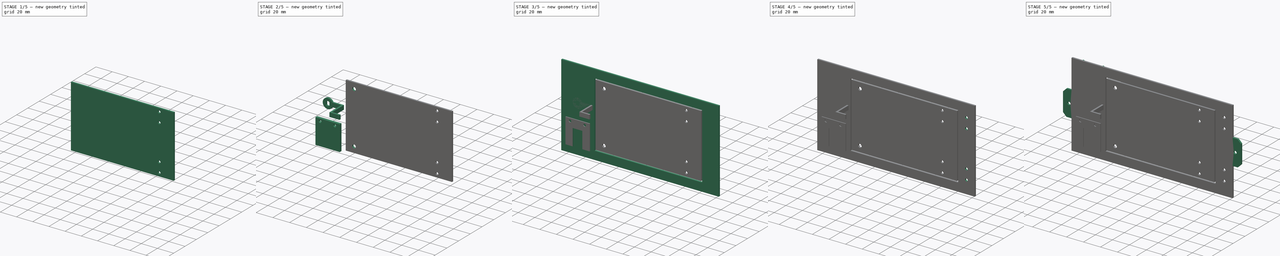
[diagram: build sequence overview — one tinted view per stage of 5, left to right]
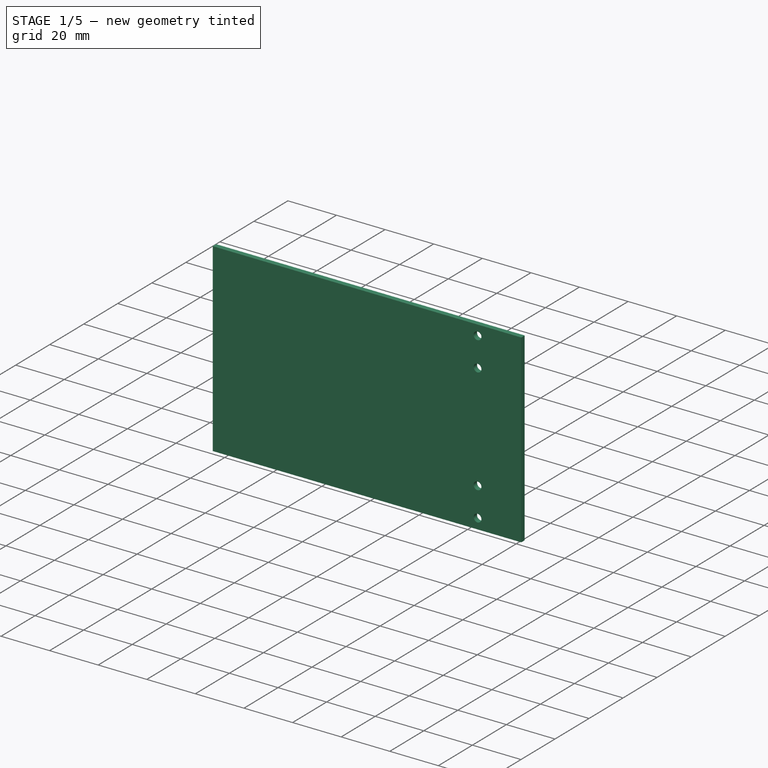
[diagram: stage 1 of 5 — iso view after this stage's code; geometry added in this stage tinted green]
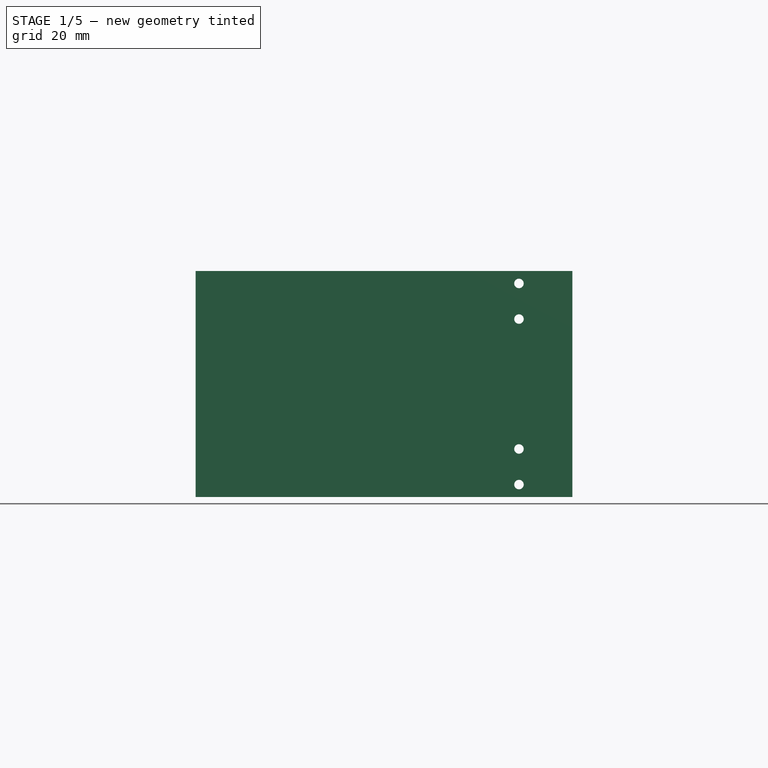
[diagram: stage 1 of 5 — front view after this stage's code; geometry added in this stage tinted green]
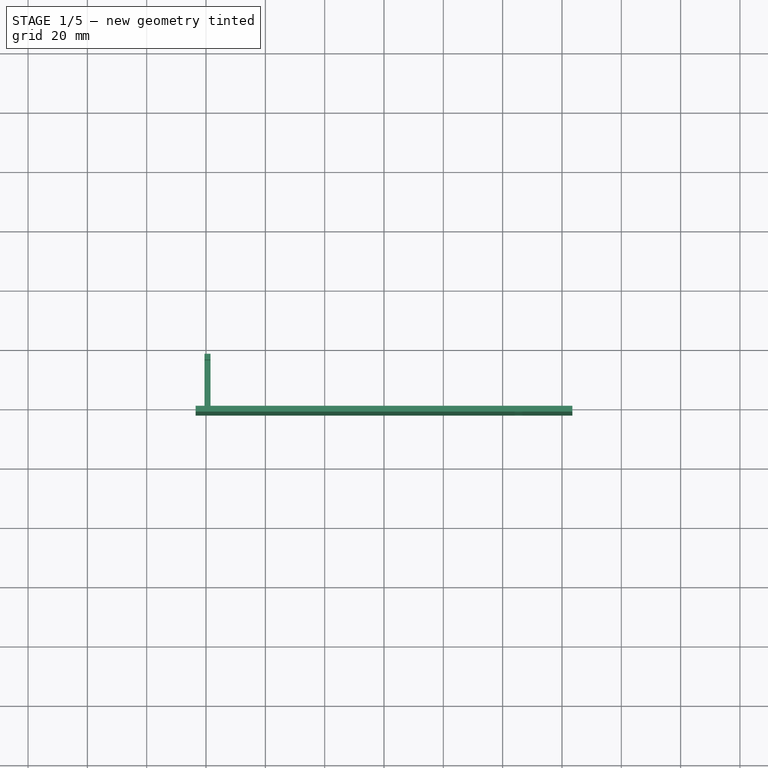
[diagram: stage 1 of 5 — top view after this stage's code; geometry added in this stage tinted green]
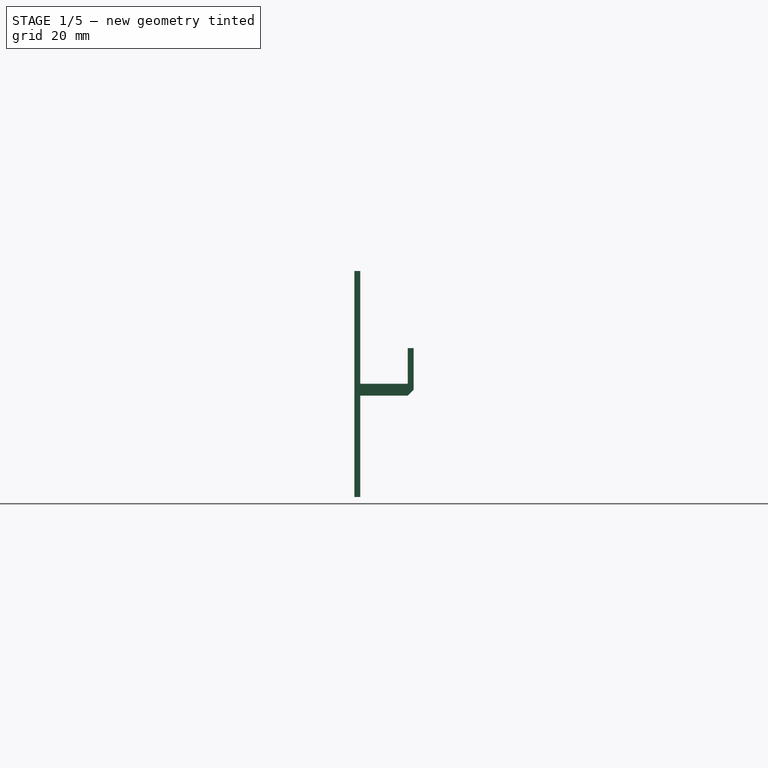
[diagram: stage 1 of 5 — right view after this stage's code; geometry added in this stage tinted green]
FCSTD DOCUMENT  (FreeCAD 1.0R39319 (Git))
Label: Box
License: All rights reserved
LicenseURL: https://en.wikipedia.org/wiki/All_rights_reserved
objects: Sketcher::SketchObject×24, PartDesign::Pad×15, PartDesign::Pocket×9, PartDesign::Body×4, PartDesign::Chamfer×2
note: 130 computed .brp shape members not serialized (recipe doc carries the construction recipe); baked Part::Feature solids carry a one-line shape summary decoded from their .brp

FEATURE [Sketcher::SketchObject] Sketch
  ArcFitTolerance = 1e-06
  AttachmentSupport = -> [XZ_Plane]
  FullyConstrained = true
  MakeInternals = false
  MapMode = 5
  Placement = pos=(0,0,0) rot=(1,0,0;1.5708rad)
  sketch-geometry (4):
    g0: LineSegment StartX=-63.5 StartY=76.2 StartZ=0 EndX=-63.5 EndY=0 EndZ=0
    g1: LineSegment StartX=-63.5 StartY=0 StartZ=0 EndX=63.5 EndY=0 EndZ=0
    g2: LineSegment StartX=63.5 StartY=0 StartZ=0 EndX=63.5 EndY=76.2 EndZ=0
    g3: LineSegment StartX=63.5 StartY=76.2 StartZ=0 EndX=-63.5 EndY=76.2 EndZ=0
  constraints (11):
    c: Coincident(g0,g1)
    c: Coincident(g1,g2)
    c: Coincident(g2,g3)
    c: Coincident(g3,g0)
    c: Vertical(g0)
    c: Vertical(g2)
    c: Horizontal(g1)
    c: Horizontal(g3)
    c: Symmetric(g1,g0,g-1)
    c: Distance(g0,g0) = 76.2
    c: Distance(g3,g3) = 127
FEATURE [PartDesign::Pad] Pad
  Direction = (0,-1,2e-16)
  Length = 2
  Length2 = 10
  Placement = pos=(0,0,0) rot=(1,0,0;1.5708rad)
  Profile = -> Sketch
  ReferenceAxis = -> Sketch [N_Axis]
  Refine = true
  Suppressed = false
  Type = 0
FEATURE [Sketcher::SketchObject] Sketch021
  ArcFitTolerance = 1e-06
  AttachmentSupport = -> [Pad]
  ExternalGeometry = -> [Pad]
  FullyConstrained = true
  MakeInternals = false
  MapMode = 5
  Placement = pos=(0,-2,0) rot=(1,0,0;1.5708rad)
  sketch-geometry (5):
    g0: Circle CenterX=45.5 CenterY=72 CenterZ=0 NormalX=0 NormalY=0 NormalZ=1 AngleXU=0 Radius=1.6
    g1: Circle CenterX=45.5 CenterY=60 CenterZ=0 NormalX=0 NormalY=0 NormalZ=1 AngleXU=0 Radius=1.6
    g2: Circle CenterX=45.5 CenterY=16.2 CenterZ=0 NormalX=0 NormalY=0 NormalZ=1 AngleXU=0 Radius=1.6
    g3: Circle CenterX=45.5 CenterY=4.2 CenterZ=0 NormalX=0 NormalY=0 NormalZ=1 AngleXU=0 Radius=1.6
    g4: LineSegment [constr] StartX=45.5 StartY=38.1 StartZ=0 EndX=63.5 EndY=38.1 EndZ=0
  constraints (14):
    c: Equal(g3,g2)
    c: Equal(g2,g1)
    c: Equal(g1,g0)
    c: Vertical(g0,g1)
    c: Vertical(g1,g2)
    c: Vertical(g2,g3)
    c: DistanceY(g3,g2) = 12
    c: DistanceY(g1,g0) = 12
    c: Diameter(g0) = 3.2
    c: Horizontal(g4)
    c: Symmetric(g-3,g-3,g4)
    c: Symmetric(g2,g1,g4)
    c: Distance(g3,g-3) = 18
    c: Distance(g3,g-1) = 4.2
FEATURE [PartDesign::Pocket] Pocket010
  BaseFeature = -> Pad
  Direction = (0,1,-2e-16)
  Length = 2
  Length2 = 5
  Placement = pos=(0,0,0) rot=(1,0,0;1.5708rad)
  Profile = -> Sketch021
  ReferenceAxis = -> Sketch021 [N_Axis]
  Refine = true
  Suppressed = false
  Type = 0
FEATURE [PartDesign::Body] Body003  label="Lock"
  AllowCompound = false
  Group = -> [Sketch024,Pad010,Sketch025,Pad011,Sketch026,Pad012]
  Origin = -> Origin003
  Placement = pos=(0,35,0) rot=(0,0,1;0rad)
  Tip = -> Pad012
FEATURE [Sketcher::SketchObject] Sketch027
  ArcFitTolerance = 1e-06
  AttachmentSupport = -> [Pocket010]
  ExternalGeometry = -> [Pocket010]
  FullyConstrained = true
  MakeInternals = false
  MapMode = 5
  Placement = pos=(0,8.5e-15,0) rot=(-1,0,0;1.5708rad)
  sketch-geometry (4):
    g0: LineSegment StartX=-60.5 StartY=-34.2 StartZ=0 EndX=-60.5 EndY=-38.2 EndZ=0
    g1: LineSegment StartX=-60.5 StartY=-38.2 StartZ=0 EndX=-58.5 EndY=-38.2 EndZ=0
    g2: LineSegment StartX=-58.5 StartY=-38.2 StartZ=0 EndX=-58.5 EndY=-34.2 EndZ=0
    g3: LineSegment StartX=-58.5 StartY=-34.2 StartZ=0 EndX=-60.5 EndY=-34.2 EndZ=0
  constraints (12):
    c: Coincident(g0,g1)
    c: Coincident(g1,g2)
    c: Coincident(g2,g3)
    c: Coincident(g3,g0)
    c: Vertical(g0)
    c: Vertical(g2)
    c: Horizontal(g1)
    c: Horizontal(g3)
    c: Distance(g0,g2) = 2
    c: Distance(g1,g3) = 4
    c: Distance(g0,g-3) = 3
    c: Distance(g0,g-4) = 38
FEATURE [PartDesign::Pad] Pad013
  BaseFeature = -> Pocket010
  Direction = (0,1,2e-16)
  Length = 18
  Length2 = 10
  Placement = pos=(0,0,0) rot=(1,0,0;1.5708rad)
  Profile = -> Sketch027
  ReferenceAxis = -> Sketch027 [N_Axis]
  Refine = true
  Suppressed = false
  Type = 0
FEATURE [Sketcher::SketchObject] Sketch028
  ArcFitTolerance = 1e-06
  AttachmentSupport = -> [Pad013]
  ExternalGeometry = -> [Pad013]
  FullyConstrained = true
  MakeInternals = false
  MapMode = 5
  Placement = pos=(0,-8.5e-15,38.2) rot=(0,0,1;3.14159rad)
  sketch-geometry (4):
    g0: LineSegment StartX=58.5 StartY=-18 StartZ=0 EndX=60.5 EndY=-18 EndZ=0
    g1: LineSegment StartX=60.5 StartY=-18 StartZ=0 EndX=60.5 EndY=-16 EndZ=0
    g2: LineSegment StartX=60.5 StartY=-16 StartZ=0 EndX=58.5 EndY=-16 EndZ=0
    g3: LineSegment StartX=58.5 StartY=-16 StartZ=0 EndX=58.5 EndY=-18 EndZ=0
  constraints (10):
    c: Coincident(g0,g1)
    c: Coincident(g1,g2)
    c: Coincident(g2,g3)
    c: Coincident(g3,g0)
    c: Horizontal(g2)
    c: Vertical(g1)
    c: Vertical(g3)
    c: Coincident(g0,g-3)
    c: Coincident(g0,g-3)
    c: Distance(g3,g3) = 2
FEATURE [PartDesign::Pad] Pad014
  BaseFeature = -> Pad013
  Direction = (0,0,1)
  Length = 12
  Length2 = 10
  Placement = pos=(0,0,0) rot=(1,0,0;1.5708rad)
  Profile = -> Sketch028
  ReferenceAxis = -> Sketch028 [N_Axis]
  Refine = true
  Suppressed = false
  Type = 0
FEATURE [PartDesign::Chamfer] Chamfer001
  Angle = 45
  Base = -> Pad014 [Edge30]
  BaseFeature = -> Pad014
  ChamferType = 0
  FlipDirection = false
  Placement = pos=(0,0,0) rot=(1,0,0;1.5708rad)
  Refine = true
  Size = 2
  Size2 = 1
  SupportTransform = false
  Suppressed = false
  UseAllEdges = false
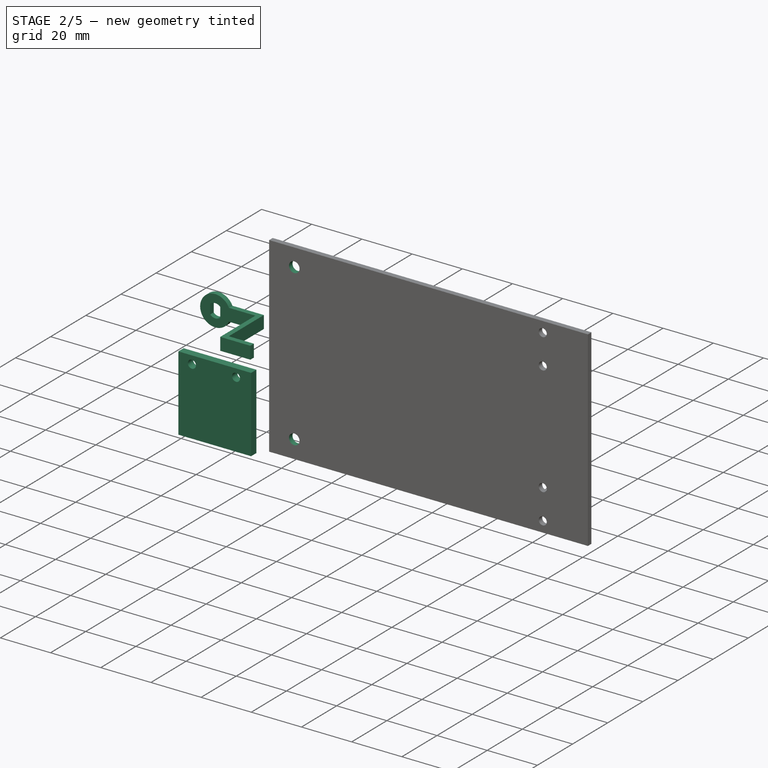
[diagram: stage 2 of 5 — iso view after this stage's code; geometry added in this stage tinted green]
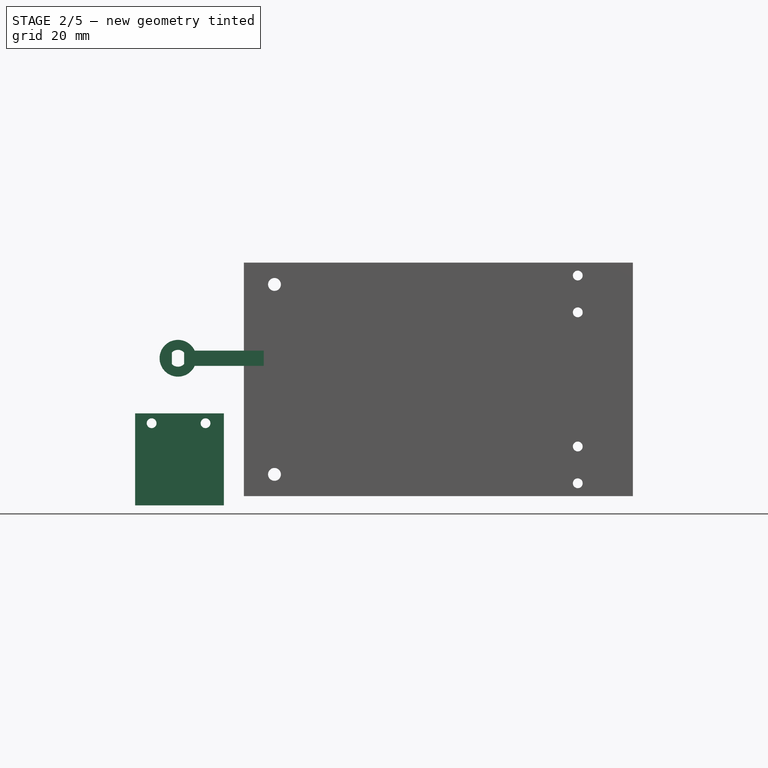
[diagram: stage 2 of 5 — front view after this stage's code; geometry added in this stage tinted green]
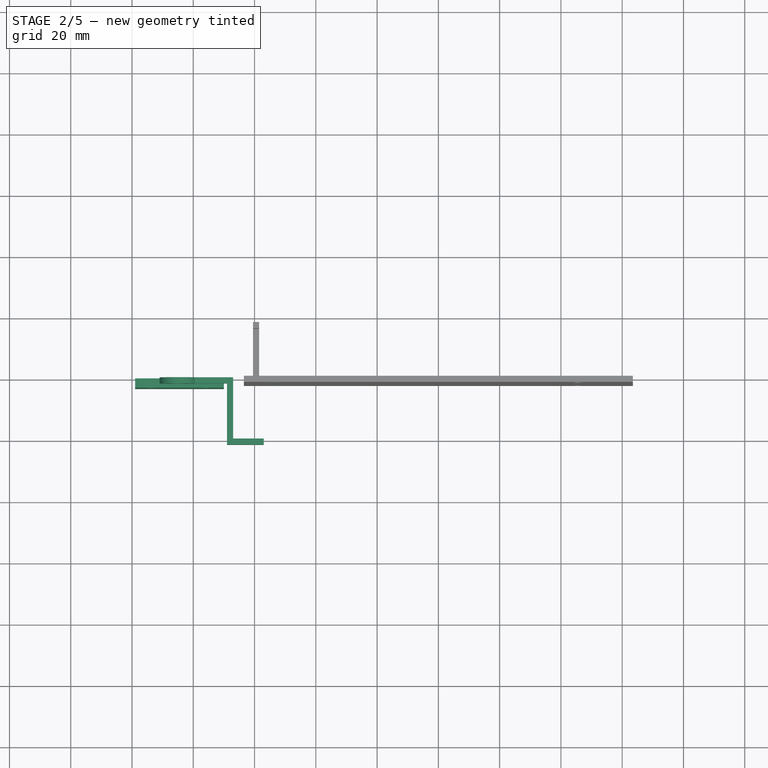
[diagram: stage 2 of 5 — top view after this stage's code; geometry added in this stage tinted green]
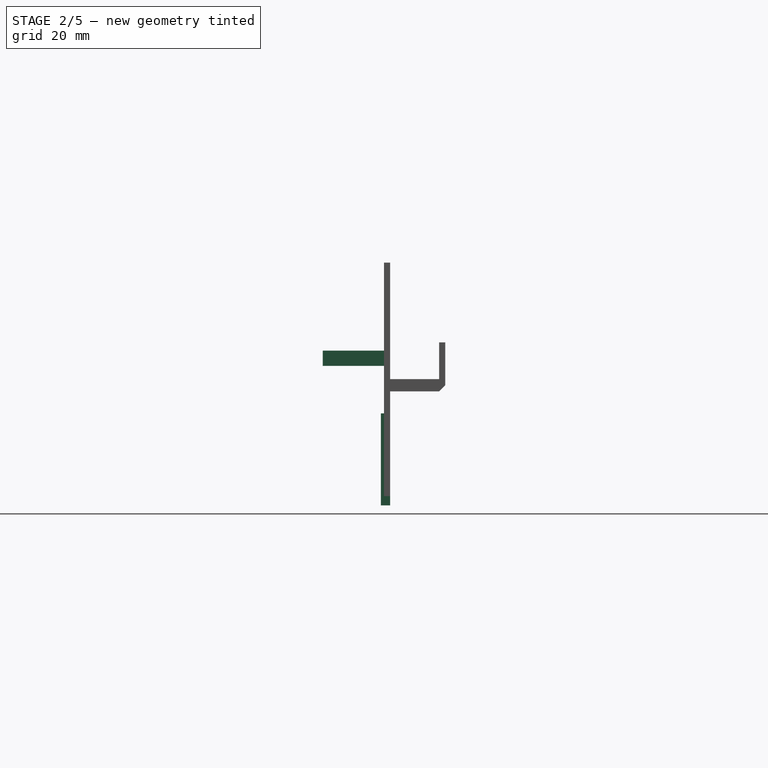
[diagram: stage 2 of 5 — right view after this stage's code; geometry added in this stage tinted green]
FEATURE [PartDesign::Body] Body001  label="Frame"
  AllowCompound = false
  Group = -> [Sketch001,Pad001,Sketch002,Pocket,Sketch003,Pad002,Sketch004,Pocket001,Sketch005,Pocket002,Sketch006,Pocket003,Sketch007,Pocket004,Sketch008,Pad003,Sketch009,Pad004,Sketch011,Pad005,Chamfer,Sketch012,Pocket005]
  Origin = -> Origin001
  Tip = -> Pocket005
FEATURE [Sketcher::SketchObject] Sketch014
  ArcFitTolerance = 1e-06
  AttachmentSupport = -> [XZ_Plane002]
  FullyConstrained = true
  MakeInternals = false
  MapMode = 5
  Placement = pos=(0,0,0) rot=(1,0,0;1.5708rad)
  sketch-geometry (6):
    g0: LineSegment StartX=-70 StartY=27 StartZ=0 EndX=-99 EndY=27 EndZ=0
    g1: LineSegment StartX=-99 StartY=27 StartZ=0 EndX=-99 EndY=-3 EndZ=0
    g2: LineSegment StartX=-99 StartY=-3 StartZ=0 EndX=-70 EndY=-3 EndZ=0
    g3: LineSegment StartX=-70 StartY=-3 StartZ=0 EndX=-70 EndY=27 EndZ=0
    g4: Circle CenterX=-76 CenterY=23.8 CenterZ=0 NormalX=0 NormalY=0 NormalZ=1 AngleXU=0 Radius=1.6
    g5: Circle CenterX=-93.6 CenterY=23.8 CenterZ=0 NormalX=0 NormalY=0 NormalZ=1 AngleXU=0 Radius=1.6
  constraints (18):
    c: Coincident(g0,g1)
    c: Coincident(g1,g2)
    c: Coincident(g2,g3)
    c: Coincident(g3,g0)
    c: Horizontal(g0)
    c: Horizontal(g2)
    c: Vertical(g1)
    c: Vertical(g3)
    c: Distance(g1,g3) = 29
    c: Distance(g0,g2) = 30
    c: Equal(g5,g4)
    c: Horizontal(g4,g5)
    c: Diameter(g5) = 3.2
    c: Distance(g-1,g2) = 3
    c: Distance(g3,g-2) = 70
    c: Distance(g4,g5) = 14.4
    c: Distance(g4,g0) = 1.6
    c: Distance(g5,g1) = 3.8
FEATURE [PartDesign::Pad] Pad006
  Direction = (0,-1,2e-16)
  Length = 3
  Length2 = 10
  Placement = pos=(0,0,0) rot=(1,0,0;1.5708rad)
  Profile = -> Sketch014
  ReferenceAxis = -> Sketch014 [N_Axis]
  Refine = true
  Suppressed = false
  Type = 0
FEATURE [PartDesign::Body] Body002  label="Motor Controller"
  AllowCompound = false
  Group = -> [Sketch014,Pad006,Sketch015,Pocket006,Sketch016,Pad007,Sketch022,Pad008,Sketch023,Pad009]
  Origin = -> Origin002
  Placement = pos=(0,35,0) rot=(0,0,1;0rad)
  Tip = -> Pad009
FEATURE [Sketcher::SketchObject] Sketch024
  ArcFitTolerance = 1e-06
  AttachmentSupport = -> [XZ_Plane003]
  FullyConstrained = true
  MakeInternals = false
  MapMode = 5
  Placement = pos=(0,0,0) rot=(1,0,0;1.5708rad)
  sketch-geometry (9):
    g0: ArcOfCircle CenterX=-85 CenterY=45 CenterZ=0 NormalX=0 NormalY=0 NormalZ=1 AngleXU=0 Radius=6 StartAngle=0.429775 EndAngle=5.85341
    g1: LineSegment StartX=-83 StartY=43.1125 StartZ=0 EndX=-83 EndY=46.8875 EndZ=0
    g2: LineSegment StartX=-87 StartY=43.1125 StartZ=0 EndX=-87 EndY=46.8875 EndZ=0
    g3: ArcOfCircle CenterX=-85 CenterY=45 CenterZ=0 NormalX=0 NormalY=0 NormalZ=1 AngleXU=0 Radius=2.75 StartAngle=0.756456 EndAngle=2.38514
    g4: ArcOfCircle CenterX=-85 CenterY=45 CenterZ=0 NormalX=0 NormalY=0 NormalZ=1 AngleXU=0 Radius=2.75 StartAngle=3.89805 EndAngle=5.52673
    g5: LineSegment StartX=-79.5456 StartY=42.5 StartZ=0 EndX=-67 EndY=42.5 EndZ=0
    g6: LineSegment StartX=-79.5456 StartY=47.5 StartZ=0 EndX=-67 EndY=47.5 EndZ=0
    g7: LineSegment StartX=-67 StartY=47.5 StartZ=0 EndX=-67 EndY=42.5 EndZ=0
    g8: GeomPoint [constr] X=-67 Y=45 Z=0
  constraints (26):
    c: Coincident(g3,g0)
    c: Coincident(g3,g2)
    c: Coincident(g4,g0)
    c: Coincident(g4,g2)
    c: Coincident(g4,g1)
    c: Equal(g3,g4)
    c: Coincident(g3,g1)
    c: Equal(g2,g1)
    c: Parallel(g1,g2)
    c: Distance(g2,g1) = 4
    c: Radius(g3) = 2.75
    c: Diameter(g0) = 12
    c: Distance(g0,g-2) = 85
    c: Distance(g0,g-1) = 45
    c: Vertical(g2)
    c: Horizontal(g5)
    c: Horizontal(g6)
    c: Coincident(g7,g6)
    c: Coincident(g7,g5)
    c: Vertical(g7)
    c: Distance(g0,g7) = 18
    c: DistanceY(g5,g6) = 5
    c: Symmetric(g7,g7,g8)
    c: Horizontal(g8,g0)
    c: Coincident(g0,g5)
    c: Coincident(g0,g6)
FEATURE [PartDesign::Pad] Pad010
  Direction = (0,-1,2e-16)
  Length = 2
  Length2 = 10
  Placement = pos=(0,0,0) rot=(1,0,0;1.5708rad)
  Profile = -> Sketch024
  ReferenceAxis = -> Sketch024 [N_Axis]
  Refine = true
  Suppressed = false
  Type = 0
FEATURE [Sketcher::SketchObject] Sketch025
  ArcFitTolerance = 1e-06
  AttachmentSupport = -> [Pad010]
  ExternalGeometry = -> [Pad010]
  FullyConstrained = true
  MakeInternals = false
  MapMode = 5
  Placement = pos=(0,-2,0) rot=(1,0,0;1.5708rad)
  sketch-geometry (4):
    g0: LineSegment StartX=-67 StartY=42.5 StartZ=0 EndX=-67 EndY=47.5 EndZ=0
    g1: LineSegment StartX=-67 StartY=47.5 StartZ=0 EndX=-69 EndY=47.5 EndZ=0
    g2: LineSegment StartX=-69 StartY=47.5 StartZ=0 EndX=-69 EndY=42.5 EndZ=0
    g3: LineSegment StartX=-69 StartY=42.5 StartZ=0 EndX=-67 EndY=42.5 EndZ=0
  constraints (10):
    c: Coincident(g0,g1)
    c: Coincident(g1,g2)
    c: Coincident(g2,g3)
    c: Coincident(g3,g0)
    c: Vertical(g2)
    c: Horizontal(g1)
    c: Horizontal(g3)
    c: Coincident(g0,g-3)
    c: Coincident(g-3,g0)
    c: DistanceX(g1,g1) = 2
FEATURE [PartDesign::Pad] Pad011
  BaseFeature = -> Pad010
  Direction = (0,-1,2e-16)
  Length = 20
  Length2 = 10
  Placement = pos=(0,0,0) rot=(1,0,0;1.5708rad)
  Profile = -> Sketch025
  ReferenceAxis = -> Sketch025 [N_Axis]
  Refine = true
  Suppressed = false
  Type = 0
FEATURE [Sketcher::SketchObject] Sketch026
  ArcFitTolerance = 1e-06
  AttachmentSupport = -> [Pad011]
  ExternalGeometry = -> [Pad011]
  FullyConstrained = true
  MakeInternals = false
  MapMode = 5
  Placement = pos=(-67,3.2e-14,0) rot=(0.707107,0,0.707107;3.14159rad)
  sketch-geometry (4):
    g0: LineSegment StartX=42.5 StartY=22 StartZ=0 EndX=42.5 EndY=20 EndZ=0
    g1: LineSegment StartX=42.5 StartY=20 StartZ=0 EndX=47.5 EndY=20 EndZ=0
    g2: LineSegment StartX=47.5 StartY=20 StartZ=0 EndX=47.5 EndY=22 EndZ=0
    g3: LineSegment StartX=47.5 StartY=22 StartZ=0 EndX=42.5 EndY=22 EndZ=0
  constraints (10):
    c: Coincident(g0,g1)
    c: Coincident(g1,g2)
    c: Coincident(g2,g3)
    c: Coincident(g3,g0)
    c: Vertical(g0)
    c: Vertical(g2)
    c: Horizontal(g1)
    c: Coincident(g0,g-3)
    c: Coincident(g-3,g2)
    c: DistanceY(g2,g2) = 2
FEATURE [PartDesign::Pad] Pad012
  BaseFeature = -> Pad011
  Direction = (1,0,-2e-16)
  Length = 10
  Length2 = 10
  Placement = pos=(0,0,0) rot=(1,0,0;1.5708rad)
  Profile = -> Sketch026
  ReferenceAxis = -> Sketch026 [N_Axis]
  Refine = true
  Suppressed = false
  Type = 0
FEATURE [Sketcher::SketchObject] Sketch029
  ArcFitTolerance = 1e-06
  AttachmentSupport = -> [Chamfer001]
  ExternalGeometry = -> [Chamfer001]
  FullyConstrained = true
  MakeInternals = false
  MapMode = 5
  Placement = pos=(0,-2,0) rot=(1,0,0;1.5708rad)
  sketch-geometry (3):
    g0: Circle CenterX=-53.5 CenterY=69.1 CenterZ=0 NormalX=0 NormalY=0 NormalZ=1 AngleXU=0 Radius=2.1
    g1: Circle CenterX=-53.5 CenterY=7.1 CenterZ=0 NormalX=0 NormalY=0 NormalZ=1 AngleXU=0 Radius=2.1
    g2: LineSegment [constr] StartX=-63.5 StartY=38.1 StartZ=0 EndX=-53.5 EndY=38.1 EndZ=0
  constraints (8):
    c: Vertical(g1,g0)
    c: Equal(g0,g1)
    c: Diameter(g0) = 4.2
    c: Distance(g0,g1) = 57.8
    c: Symmetric(g-3,g-3,g2)
    c: Horizontal(g2)
    c: Symmetric(g1,g0,g2)
    c: Distance(g2,g2) = 10
FEATURE [PartDesign::Pocket] Pocket011
  BaseFeature = -> Chamfer001
  Direction = (0,1,-2e-16)
  Length = 2
  Length2 = 5
  Placement = pos=(0,0,0) rot=(1,0,0;1.5708rad)
  Profile = -> Sketch029
  ReferenceAxis = -> Sketch029 [N_Axis]
  Refine = true
  Suppressed = false
  Type = 0
FEATURE [PartDesign::Body] Body  label="Door"
  AllowCompound = false
  Group = -> [Sketch,Pad,Sketch021,Pocket010,Sketch027,Pad013,Sketch028,Pad014,Chamfer001,Sketch029,Pocket011]
  Origin = -> Origin
  Tip = -> Pocket011
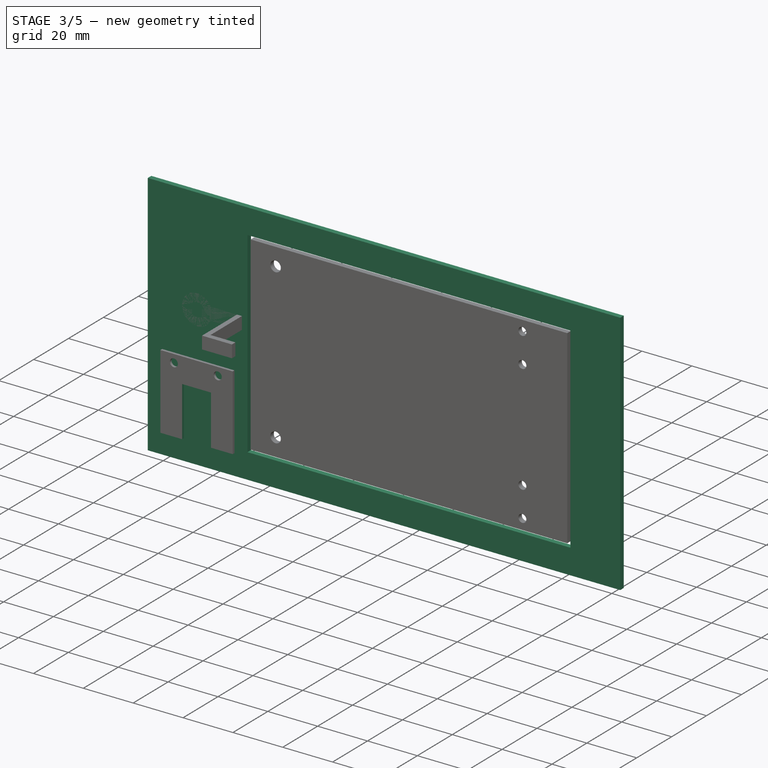
[diagram: stage 3 of 5 — iso view after this stage's code; geometry added in this stage tinted green]
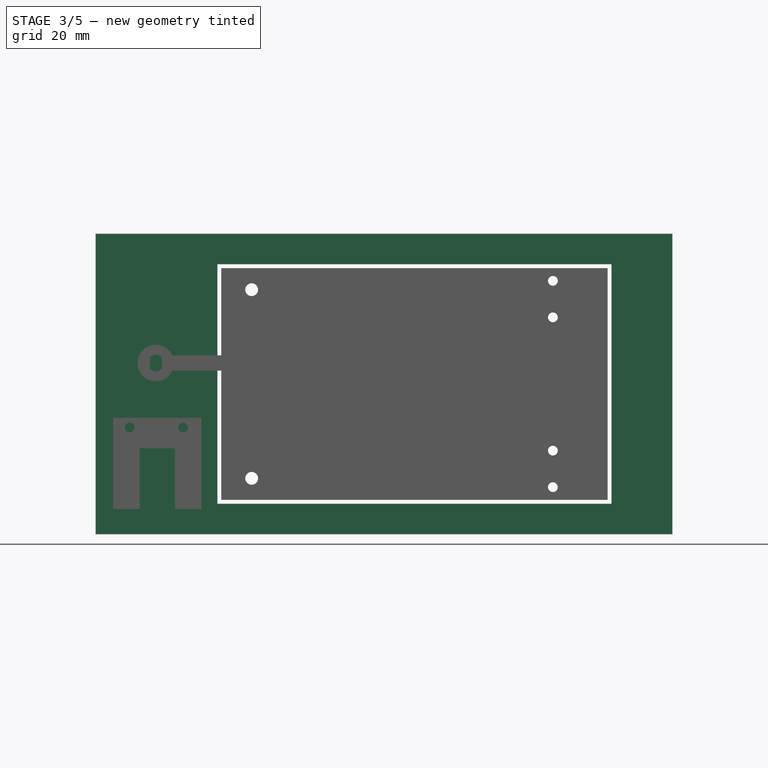
[diagram: stage 3 of 5 — front view after this stage's code; geometry added in this stage tinted green]
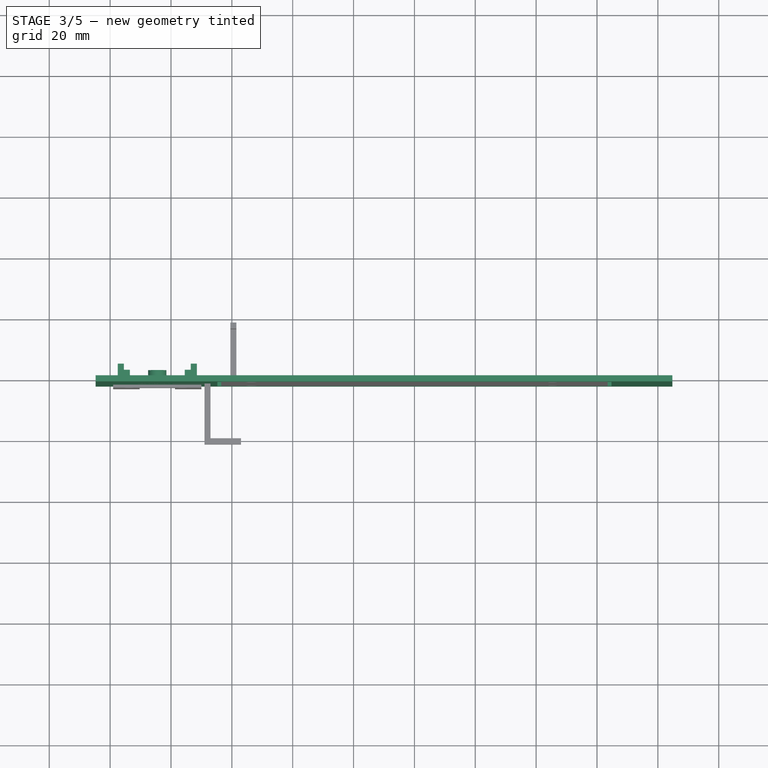
[diagram: stage 3 of 5 — top view after this stage's code; geometry added in this stage tinted green]
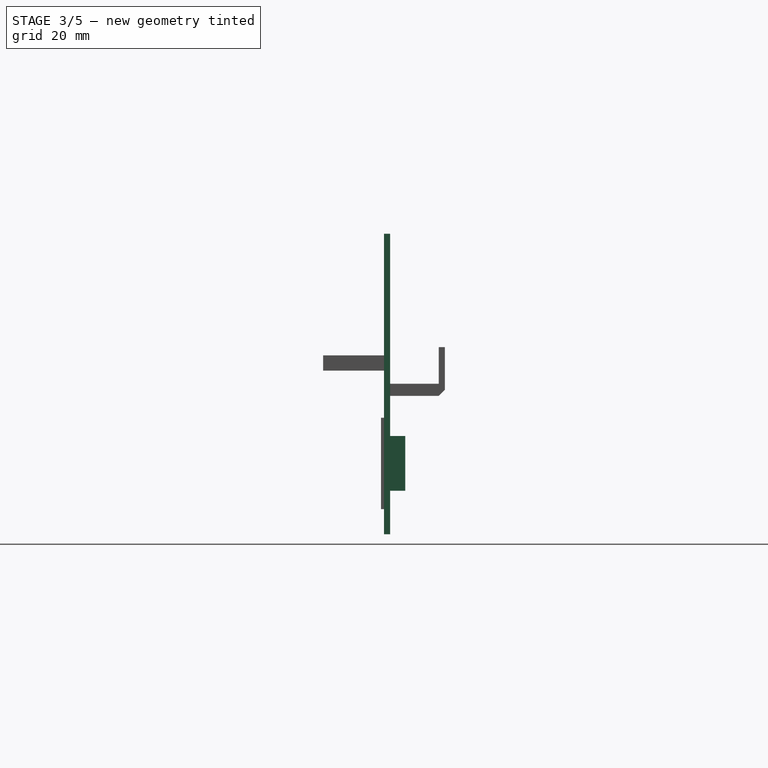
[diagram: stage 3 of 5 — right view after this stage's code; geometry added in this stage tinted green]
FEATURE [Sketcher::SketchObject] Sketch001
  ArcFitTolerance = 1e-06
  AttachmentSupport = -> [XZ_Plane001]
  FullyConstrained = true
  MakeInternals = false
  MapMode = 5
  Placement = pos=(0,0,0) rot=(1,0,0;1.5708rad)
  sketch-geometry (8):
    g0: LineSegment StartX=-64.77 StartY=77.47 StartZ=0 EndX=-64.77 EndY=-1.27 EndZ=0
    g1: LineSegment StartX=-64.77 StartY=-1.27 StartZ=0 EndX=64.77 EndY=-1.27 EndZ=0
    g2: LineSegment StartX=64.77 StartY=-1.27 StartZ=0 EndX=64.77 EndY=77.47 EndZ=0
    g3: LineSegment StartX=64.77 StartY=77.47 StartZ=0 EndX=-64.77 EndY=77.47 EndZ=0
    g4: LineSegment StartX=-104.77 StartY=87.47 StartZ=0 EndX=-104.77 EndY=-11.27 EndZ=0
    g5: LineSegment StartX=-104.77 StartY=-11.27 StartZ=0 EndX=84.77 EndY=-11.27 EndZ=0
    g6: LineSegment StartX=84.77 StartY=-11.27 StartZ=0 EndX=84.77 EndY=87.47 EndZ=0
    g7: LineSegment StartX=84.77 StartY=87.47 StartZ=0 EndX=-104.77 EndY=87.47 EndZ=0
  constraints (23):
    c: Coincident(g0,g1)
    c: Coincident(g1,g2)
    c: Coincident(g2,g3)
    c: Coincident(g3,g0)
    c: Vertical(g0)
    c: Vertical(g2)
    c: Horizontal(g3)
    c: Distance(g0,g0) = 78.74
    c: Distance(g3,g3) = 129.54
    c: Coincident(g4,g5)
    c: Coincident(g5,g6)
    c: Coincident(g6,g7)
    c: Coincident(g7,g4)
    c: Vertical(g4)
    c: Vertical(g6)
    c: Horizontal(g5)
    c: Horizontal(g7)
    c: Distance(g6,g2) = 20
    c: Distance(g7,g3) = 10
    c: Distance(g0,g4) = 40
    c: Distance(g5,g1) = 10
    c: Symmetric(g1,g0,g-2)
    c: Distance(g-1,g1) = 1.27
FEATURE [PartDesign::Pad] Pad001
  Direction = (0,-1,2e-16)
  Length = 2
  Length2 = 10
  Placement = pos=(0,0,0) rot=(1,0,0;1.5708rad)
  Profile = -> Sketch001
  ReferenceAxis = -> Sketch001 [N_Axis]
  Refine = true
  Suppressed = false
  Type = 0
FEATURE [Sketcher::SketchObject] Sketch002
  ArcFitTolerance = 1e-06
  AttachmentSupport = -> [Pad001]
  ExternalGeometry = -> [Pad001]
  FullyConstrained = true
  MakeInternals = false
  MapMode = 5
  Placement = pos=(0,8.5e-15,0) rot=(-1,0,0;1.5708rad)
  sketch-geometry (10):
    g0: LineSegment StartX=-99.17 StartY=-33.67 StartZ=0 EndX=-99.17 EndY=-85.47 EndZ=0
    g1: LineSegment StartX=-99.17 StartY=-85.47 StartZ=0 EndX=-70.37 EndY=-85.47 EndZ=0
    g2: LineSegment StartX=-70.37 StartY=-85.47 StartZ=0 EndX=-70.37 EndY=-33.67 EndZ=0
    g3: LineSegment StartX=-70.37 StartY=-33.67 StartZ=0 EndX=-79.47 EndY=-33.67 EndZ=0
    g4: LineSegment [constr] StartX=-104.77 StartY=-85.47 StartZ=0 EndX=-64.77 EndY=-85.47 EndZ=0
    g5: GeomPoint [constr] X=-84.77 Y=-85.47 Z=0
    g6: LineSegment StartX=-79.47 StartY=-33.67 StartZ=0 EndX=-79.47 EndY=-0.67 EndZ=0
    g7: LineSegment StartX=-79.47 StartY=-0.67 StartZ=0 EndX=-90.07 EndY=-0.67 EndZ=0
    g8: LineSegment StartX=-90.07 StartY=-0.67 StartZ=0 EndX=-90.07 EndY=-33.67 EndZ=0
    g9: LineSegment StartX=-90.07 StartY=-33.67 StartZ=0 EndX=-99.17 EndY=-33.67 EndZ=0
  constraints (28):
    c: Coincident(g0,g1)
    c: Coincident(g1,g2)
    c: Coincident(g2,g3)
    c: Coincident(g9,g0)
    c: Vertical(g0)
    c: Vertical(g2)
    c: Horizontal(g1)
    c: Horizontal(g3)
    c: Distance(g0,g2) = 28.8
    c: Distance(g1,g9) = 51.8
    c: PointOnObject(g4,g-3)
    c: PointOnObject(g4,g-4)
    c: Horizontal(g4)
    c: Symmetric(g4,g4,g5)
    c: Symmetric(g0,g1,g5)
    c: Distance(g-3,g1) = 2
    c: Coincident(g6,g7)
    c: Coincident(g7,g8)
    c: Horizontal(g7)
    c: Vertical(g6)
    c: Vertical(g8)
    c: Coincident(g6,g3)
    c: Coincident(g8,g9)
    c: Horizontal(g9)
    c: Equal(g9,g3)
    c: Horizontal(g3,g8)
    c: Distance(g7,g7) = 10.6
    c: DistanceY(g8,g8) = 33
FEATURE [PartDesign::Pocket] Pocket
  BaseFeature = -> Pad001
  Direction = (0,-1,-2e-16)
  Length = 1
  Length2 = 5
  Placement = pos=(0,0,0) rot=(1,0,0;1.5708rad)
  Profile = -> Sketch002
  ReferenceAxis = -> Sketch002 [N_Axis]
  Refine = true
  Suppressed = false
  Type = 0
FEATURE [Sketcher::SketchObject] Sketch015
  ArcFitTolerance = 1e-06
  AttachmentSupport = -> [Pad006]
  ExternalGeometry = -> [Pad006]
  FullyConstrained = true
  MakeInternals = false
  MapMode = 5
  Placement = pos=(0,-3,0) rot=(1,0,0;1.5708rad)
  sketch-geometry (5):
    g0: LineSegment StartX=-90.3 StartY=17 StartZ=0 EndX=-90.3 EndY=-3 EndZ=0
    g1: LineSegment StartX=-90.3 StartY=-3 StartZ=0 EndX=-78.7 EndY=-3 EndZ=0
    g2: LineSegment StartX=-78.7 StartY=-3 StartZ=0 EndX=-78.7 EndY=17 EndZ=0
    g3: LineSegment StartX=-78.7 StartY=17 StartZ=0 EndX=-90.3 EndY=17 EndZ=0
    g4: GeomPoint [constr] X=-84.5 Y=-3 Z=0
  constraints (12):
    c: Coincident(g0,g1)
    c: Coincident(g1,g2)
    c: Coincident(g2,g3)
    c: Coincident(g3,g0)
    c: Vertical(g0)
    c: Vertical(g2)
    c: Horizontal(g1)
    c: Horizontal(g3)
    c: Distance(g0,g2) = 11.6
    c: Distance(g1,g3) = 20
    c: Symmetric(g-3,g-3,g4)
    c: Symmetric(g1,g0,g4)
FEATURE [PartDesign::Pocket] Pocket006
  BaseFeature = -> Pad006
  Direction = (0,1,-2e-16)
  Length = 2.6
  Length2 = 5
  Placement = pos=(0,0,0) rot=(1,0,0;1.5708rad)
  Profile = -> Sketch015
  ReferenceAxis = -> Sketch015 [N_Axis]
  Refine = true
  Suppressed = false
  Type = 0
FEATURE [Sketcher::SketchObject] Sketch016
  ArcFitTolerance = 1e-06
  AttachmentSupport = -> [Pocket006]
  ExternalGeometry = -> [Pocket006]
  FullyConstrained = true
  MakeInternals = false
  MapMode = 5
  Placement = pos=(0,3e-15,0) rot=(-1,0,0;1.5708rad)
  sketch-geometry (2):
    g0: Circle CenterX=-84.5 CenterY=-12 CenterZ=0 NormalX=0 NormalY=0 NormalZ=1 AngleXU=0 Radius=1.4
    g1: Circle CenterX=-84.5 CenterY=-12 CenterZ=0 NormalX=0 NormalY=0 NormalZ=1 AngleXU=0 Radius=3
  constraints (4):
    c: Diameter(g0) = 2.8
    c: Symmetric(g-3,g-4,g0)
    c: Coincident(g1,g0)
    c: Distance(g0,g1) = 1.6
FEATURE [PartDesign::Pad] Pad007
  BaseFeature = -> Pocket006
  Direction = (0,1,2e-16)
  Length = 3
  Length2 = 10
  Placement = pos=(0,0,0) rot=(1,0,0;1.5708rad)
  Profile = -> Sketch016
  ReferenceAxis = -> Sketch016 [N_Axis]
  Refine = true
  Suppressed = false
  Type = 0
FEATURE [Sketcher::SketchObject] Sketch022
  ArcFitTolerance = 1e-06
  AttachmentSupport = -> [Pad007]
  ExternalGeometry = -> [Pad007]
  FullyConstrained = true
  MakeInternals = false
  MapMode = 5
  Placement = pos=(0,3e-15,0) rot=(-1,0,0;1.5708rad)
  sketch-geometry (8):
    g0: LineSegment StartX=-97.5 StartY=-3 StartZ=0 EndX=-97.5 EndY=-21 EndZ=0
    g1: LineSegment StartX=-97.5 StartY=-21 StartZ=0 EndX=-95.5 EndY=-21 EndZ=0
    g2: LineSegment StartX=-95.5 StartY=-21 StartZ=0 EndX=-95.5 EndY=-3 EndZ=0
    g3: LineSegment StartX=-95.5 StartY=-3 StartZ=0 EndX=-97.5 EndY=-3 EndZ=0
    g4: LineSegment StartX=-73.5 StartY=-3 StartZ=0 EndX=-73.5 EndY=-21 EndZ=0
    g5: LineSegment StartX=-73.5 StartY=-21 StartZ=0 EndX=-71.5 EndY=-21 EndZ=0
    g6: LineSegment StartX=-71.5 StartY=-21 StartZ=0 EndX=-71.5 EndY=-3 EndZ=0
    g7: LineSegment StartX=-71.5 StartY=-3 StartZ=0 EndX=-73.5 EndY=-3 EndZ=0
  constraints (23):
    c: Coincident(g0,g1)
    c: Coincident(g1,g2)
    c: Coincident(g2,g3)
    c: Coincident(g3,g0)
    c: Vertical(g0)
    c: Vertical(g2)
    c: Horizontal(g1)
    c: Horizontal(g3)
    c: Coincident(g4,g5)
    c: Coincident(g5,g6)
    c: Coincident(g6,g7)
    c: Coincident(g7,g4)
    c: Vertical(g4)
    c: Vertical(g6)
    c: Horizontal(g5)
    c: Horizontal(g7)
    c: Equal(g2,g4)
    c: Equal(g3,g7)
    c: Horizontal(g2,g4)
    c: Distance(g1,g1) = 2
    c: Distance(g4,g2) = 22
    c: Symmetric(g2,g4,g-3)
    c: DistanceY(g0,g0) = 18
FEATURE [PartDesign::Pad] Pad008
  BaseFeature = -> Pad007
  Direction = (0,1,2e-16)
  Length = 5
  Length2 = 10
  Placement = pos=(0,0,0) rot=(1,0,0;1.5708rad)
  Profile = -> Sketch022
  ReferenceAxis = -> Sketch022 [N_Axis]
  Refine = true
  Suppressed = false
  Type = 0
FEATURE [Sketcher::SketchObject] Sketch023
  ArcFitTolerance = 1e-06
  AttachmentSupport = -> [Pad008]
  ExternalGeometry = -> [Pad008]
  FullyConstrained = true
  MakeInternals = false
  MapMode = 5
  Placement = pos=(0,3e-15,0) rot=(-1,0,0;1.5708rad)
  sketch-geometry (8):
    g0: LineSegment StartX=-95.5 StartY=-3 StartZ=0 EndX=-95.5 EndY=-21 EndZ=0
    g1: LineSegment StartX=-95.5 StartY=-21 StartZ=0 EndX=-93.5 EndY=-21 EndZ=0
    g2: LineSegment StartX=-93.5 StartY=-21 StartZ=0 EndX=-93.5 EndY=-3 EndZ=0
    g3: LineSegment StartX=-93.5 StartY=-3 StartZ=0 EndX=-95.5 EndY=-3 EndZ=0
    g4: LineSegment StartX=-73.5 StartY=-21 StartZ=0 EndX=-73.5 EndY=-3 EndZ=0
    g5: LineSegment StartX=-73.5 StartY=-3 StartZ=0 EndX=-75.5 EndY=-3 EndZ=0
    g6: LineSegment StartX=-75.5 StartY=-3 StartZ=0 EndX=-75.5 EndY=-21 EndZ=0
    g7: LineSegment StartX=-75.5 StartY=-21 StartZ=0 EndX=-73.5 EndY=-21 EndZ=0
  constraints (20):
    c: Coincident(g0,g1)
    c: Coincident(g1,g2)
    c: Coincident(g2,g3)
    c: Coincident(g3,g0)
    c: Vertical(g2)
    c: Horizontal(g1)
    c: Horizontal(g3)
    c: Coincident(g0,g-3)
    c: Coincident(g4,g5)
    c: Coincident(g5,g6)
    c: Coincident(g6,g7)
    c: Coincident(g7,g4)
    c: Vertical(g6)
    c: Horizontal(g5)
    c: Horizontal(g7)
    c: Coincident(g4,g-4)
    c: Coincident(g4,g-4)
    c: Coincident(g0,g-3)
    c: Equal(g3,g5)
    c: Distance(g3,g3) = 2
FEATURE [PartDesign::Pad] Pad009
  BaseFeature = -> Pad008
  Direction = (0,1,2e-16)
  Length = 3
  Length2 = 10
  Placement = pos=(0,0,0) rot=(1,0,0;1.5708rad)
  Profile = -> Sketch023
  ReferenceAxis = -> Sketch023 [N_Axis]
  Refine = true
  Suppressed = false
  Type = 0
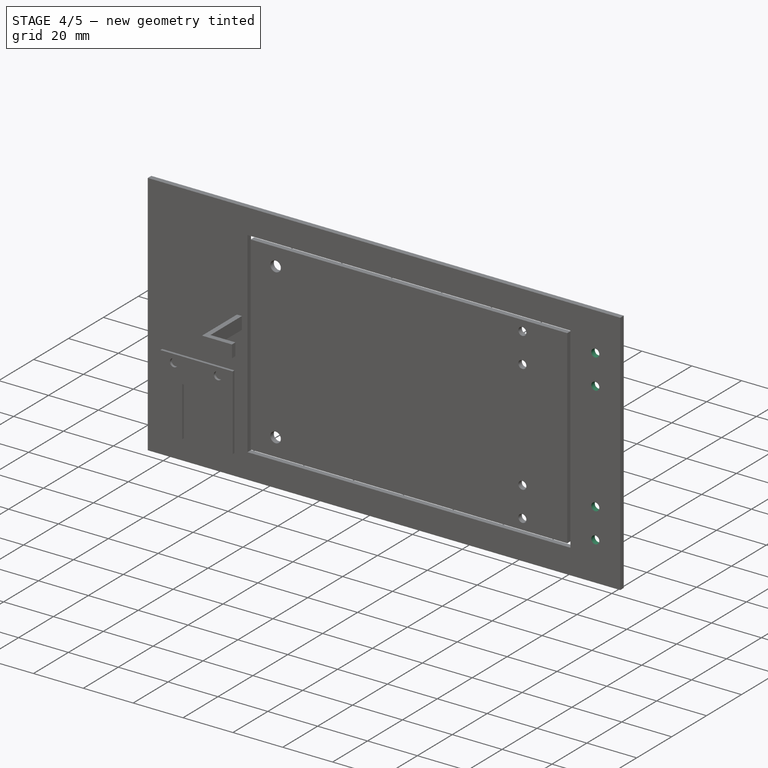
[diagram: stage 4 of 5 — iso view after this stage's code; geometry added in this stage tinted green]
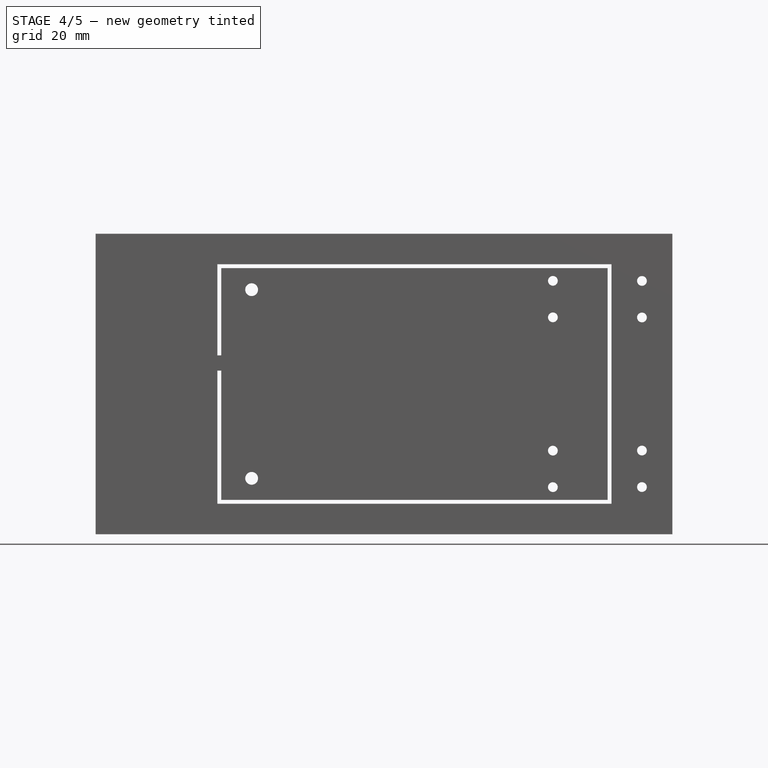
[diagram: stage 4 of 5 — front view after this stage's code; geometry added in this stage tinted green]
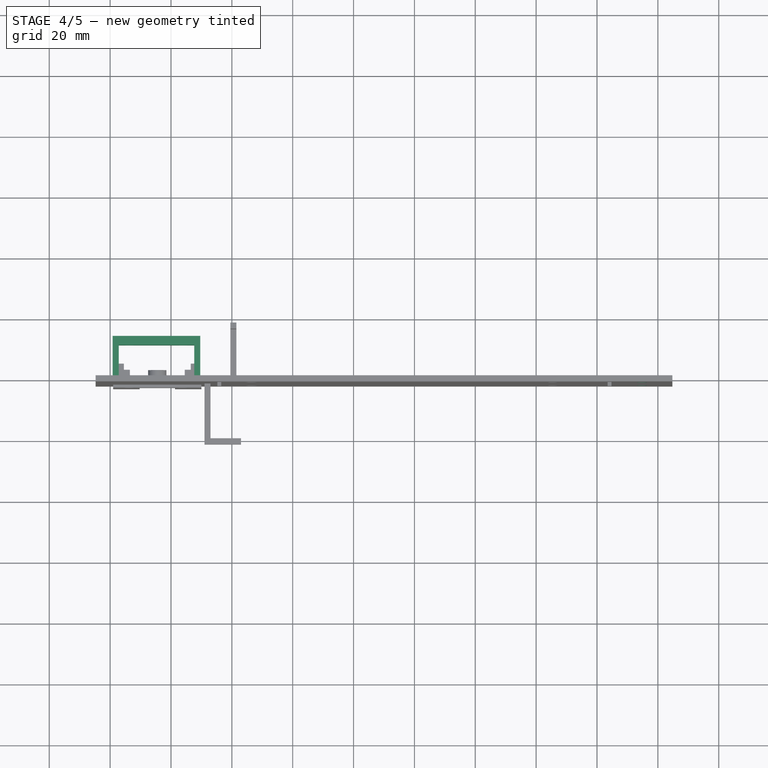
[diagram: stage 4 of 5 — top view after this stage's code; geometry added in this stage tinted green]
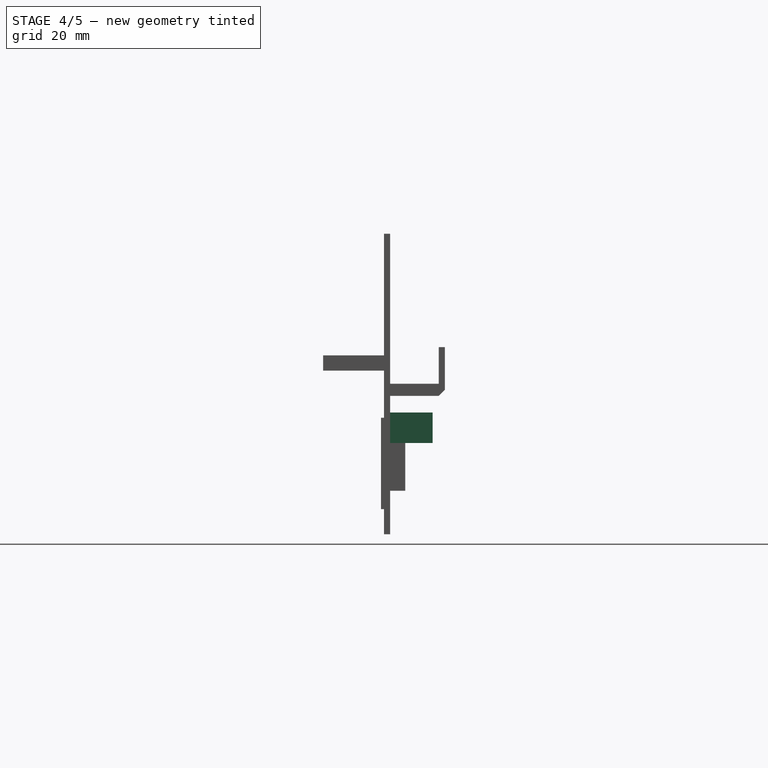
[diagram: stage 4 of 5 — right view after this stage's code; geometry added in this stage tinted green]
FEATURE [Sketcher::SketchObject] Sketch003
  ArcFitTolerance = 1e-06
  AttachmentSupport = -> [Pocket]
  ExternalGeometry = -> [Pocket]
  FullyConstrained = true
  MakeInternals = false
  MapMode = 5
  Placement = pos=(0,8.5e-15,0) rot=(-1,0,0;1.5708rad)
  sketch-geometry (4):
    g0: LineSegment StartX=-99.17 StartY=-18.73 StartZ=0 EndX=-99.17 EndY=-28.73 EndZ=0
    g1: LineSegment StartX=-99.17 StartY=-28.73 StartZ=0 EndX=-70.37 EndY=-28.73 EndZ=0
    g2: LineSegment StartX=-70.37 StartY=-28.73 StartZ=0 EndX=-70.37 EndY=-18.73 EndZ=0
    g3: LineSegment StartX=-70.37 StartY=-18.73 StartZ=0 EndX=-99.17 EndY=-18.73 EndZ=0
  constraints (12):
    c: Coincident(g0,g1)
    c: Coincident(g1,g2)
    c: Coincident(g2,g3)
    c: Coincident(g3,g0)
    c: Vertical(g0)
    c: Vertical(g2)
    c: Horizontal(g1)
    c: Horizontal(g3)
    c: Distance(g3,g-3) = 30
    c: Vertical(g0,g-4)
    c: Vertical(g1,g-5)
    c: Distance(g0,g0) = 10
FEATURE [PartDesign::Pad] Pad002
  BaseFeature = -> Pocket
  Direction = (0,1,2e-16)
  Length = 14
  Length2 = 10
  Placement = pos=(0,0,0) rot=(1,0,0;1.5708rad)
  Profile = -> Sketch003
  ReferenceAxis = -> Sketch003 [N_Axis]
  Refine = true
  Suppressed = false
  Type = 0
FEATURE [Sketcher::SketchObject] Sketch004
  ArcFitTolerance = 1e-06
  AttachmentSupport = -> [Pad002]
  ExternalGeometry = -> [Pad002]
  FullyConstrained = true
  MakeInternals = false
  MapMode = 5
  Placement = pos=(0,0,18.73) rot=(1,0,0;3.14159rad)
  sketch-geometry (4):
    g0: LineSegment StartX=-97.17 StartY=-8.5e-15 StartZ=0 EndX=-97.17 EndY=-11 EndZ=0
    g1: LineSegment StartX=-97.17 StartY=-11 StartZ=0 EndX=-72.37 EndY=-11 EndZ=0
    g2: LineSegment StartX=-72.37 StartY=-11 StartZ=0 EndX=-72.37 EndY=-8.9e-15 EndZ=0
    g3: LineSegment StartX=-72.37 StartY=-8.5e-15 StartZ=0 EndX=-97.17 EndY=-8.5e-15 EndZ=0
  constraints (12):
    c: Coincident(g0,g1)
    c: Coincident(g1,g2)
    c: Coincident(g2,g3)
    c: Coincident(g3,g0)
    c: Vertical(g0)
    c: Vertical(g2)
    c: Horizontal(g1)
    c: Horizontal(g3)
    c: Distance(g0,g-3) = 2
    c: Distance(g-4,g2) = 2
    c: Horizontal(g2,g-4)
    c: Distance(g-4,g1) = 3
FEATURE [PartDesign::Pocket] Pocket001
  BaseFeature = -> Pad002
  Direction = (0,0,1)
  Length = 10
  Length2 = 5
  Placement = pos=(0,0,0) rot=(1,0,0;1.5708rad)
  Profile = -> Sketch004
  ReferenceAxis = -> Sketch004 [N_Axis]
  Refine = true
  Suppressed = false
  Type = 0
FEATURE [Sketcher::SketchObject] Sketch005
  ArcFitTolerance = 1e-06
  AttachmentSupport = -> [Pocket001]
  ExternalGeometry = -> [Pocket001]
  FullyConstrained = true
  MakeInternals = false
  MapMode = 5
  Placement = pos=(0,14,0) rot=(-1,0,0;1.5708rad)
  sketch-geometry (5):
    g0: Circle CenterX=-93.57 CenterY=-23.73 CenterZ=0 NormalX=0 NormalY=0 NormalZ=1 AngleXU=0 Radius=1.6
    g1: Circle CenterX=-75.97 CenterY=-23.73 CenterZ=0 NormalX=0 NormalY=0 NormalZ=1 AngleXU=0 Radius=1.6
    g2: GeomPoint [constr] X=-99.17 Y=-23.73 Z=0
    g3: GeomPoint [constr] X=-84.77 Y=-28.73 Z=0
    g4: GeomPoint [constr] X=-84.77 Y=-23.73 Z=0
  constraints (9):
    c: Equal(g0,g1)
    c: Diameter(g0) = 3.2
    c: Distance(g0,g1) = 14.4
    c: Horizontal(g0,g1)
    c: Symmetric(g-3,g-3,g2)
    c: Horizontal(g2,g0)
    c: Symmetric(g-4,g-4,g3)
    c: Symmetric(g0,g1,g4)
    c: Vertical(g3,g4)
FEATURE [PartDesign::Pocket] Pocket002
  BaseFeature = -> Pocket001
  Direction = (0,-1,-2e-16)
  Length = 3
  Length2 = 5
  Placement = pos=(0,0,0) rot=(1,0,0;1.5708rad)
  Profile = -> Sketch005
  ReferenceAxis = -> Sketch005 [N_Axis]
  Refine = true
  Suppressed = false
  Type = 0
FEATURE [Sketcher::SketchObject] Sketch006
  ArcFitTolerance = 1e-06
  AttachmentSupport = -> [Pocket002]
  ExternalGeometry = -> [Pocket002]
  FullyConstrained = true
  MakeInternals = false
  MapMode = 5
  Placement = pos=(0,2e-16,0) rot=(-1,0,0;1.5708rad)
  sketch-geometry (5):
    g0: Circle CenterX=74.77 CenterY=-4.23 CenterZ=0 NormalX=0 NormalY=0 NormalZ=1 AngleXU=0 Radius=1.6
    g1: Circle CenterX=74.77 CenterY=-16.23 CenterZ=0 NormalX=0 NormalY=0 NormalZ=1 AngleXU=0 Radius=1.6
    g2: Circle CenterX=74.77 CenterY=-59.97 CenterZ=0 NormalX=0 NormalY=0 NormalZ=1 AngleXU=0 Radius=1.6
    g3: Circle CenterX=74.77 CenterY=-71.97 CenterZ=0 NormalX=0 NormalY=0 NormalZ=1 AngleXU=0 Radius=1.6
    g4: LineSegment [constr] StartX=64.77 StartY=-38.1 StartZ=0 EndX=74.77 EndY=-38.1 EndZ=0
  constraints (14):
    c: Equal(g3,g2)
    c: Equal(g2,g1)
    c: Equal(g1,g0)
    c: Diameter(g2) = 3.2
    c: DistanceY(g3,g2) = 12
    c: DistanceY(g1,g0) = 12
    c: Vertical(g2,g3)
    c: Vertical(g3,g0)
    c: Vertical(g0,g1)
    c: Distance(g0,g-3) = 10
    c: Symmetric(g-3,g-3,g4)
    c: Horizontal(g4)
    c: Symmetric(g1,g2,g4)
    c: DistanceY(g-3,g3) = 5.5
FEATURE [PartDesign::Pocket] Pocket003
  BaseFeature = -> Pocket002
  Direction = (0,-1,-2e-16)
  Length = 2
  Length2 = 5
  Placement = pos=(0,0,0) rot=(1,0,0;1.5708rad)
  Profile = -> Sketch006
  ReferenceAxis = -> Sketch006 [N_Axis]
  Refine = true
  Suppressed = false
  Type = 0
FEATURE [Sketcher::SketchObject] Sketch007
  ArcFitTolerance = 1e-06
  AttachmentSupport = -> [Pocket003]
  ExternalGeometry = -> [Pocket003]
  FullyConstrained = true
  MakeInternals = false
  MapMode = 5
  Placement = pos=(0,-1,0) rot=(-1,0,0;1.5708rad)
  sketch-geometry (4):
    g0: Circle CenterX=-89.17 CenterY=-55.67 CenterZ=0 NormalX=0 NormalY=0 NormalZ=1 AngleXU=0 Radius=1
    g1: Circle CenterX=-80.37 CenterY=-55.67 CenterZ=0 NormalX=0 NormalY=0 NormalZ=1 AngleXU=0 Radius=1
    g2: LineSegment [constr] StartX=-99.17 StartY=-55.67 StartZ=0 EndX=-70.37 EndY=-55.67 EndZ=0
    g3: GeomPoint [constr] X=-84.77 Y=-55.67 Z=0
  constraints (10):
    c: Equal(g0,g1)
    c: Diameter(g0) = 2
    c: DistanceX(g0,g1) = 8.8
    c: Distance(g0,g-3) = 22
    c: Horizontal(g0,g1)
    c: PointOnObject(g2,g-4)
    c: PointOnObject(g2,g-5)
    c: Horizontal(g2)
    c: Symmetric(g2,g2,g3)
    c: Symmetric(g1,g0,g3)
FEATURE [PartDesign::Pocket] Pocket004
  BaseFeature = -> Pocket003
  Direction = (0,-1,-2e-16)
  Length = 0.4
  Length2 = 5
  Placement = pos=(0,0,0) rot=(1,0,0;1.5708rad)
  Profile = -> Sketch007
  ReferenceAxis = -> Sketch007 [N_Axis]
  Refine = true
  Suppressed = false
  Type = 0
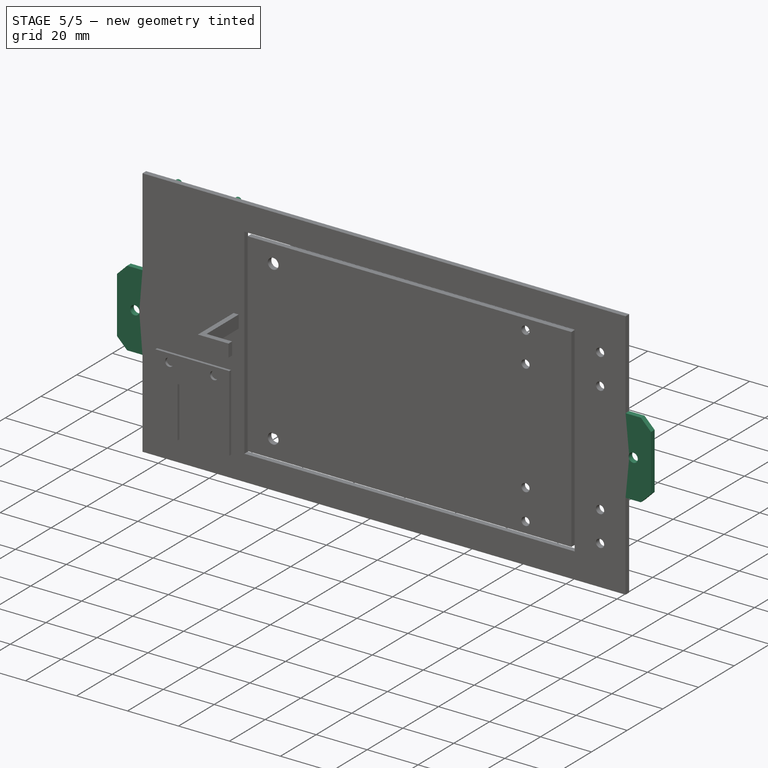
[diagram: stage 5 of 5 — iso view after this stage's code; geometry added in this stage tinted green]
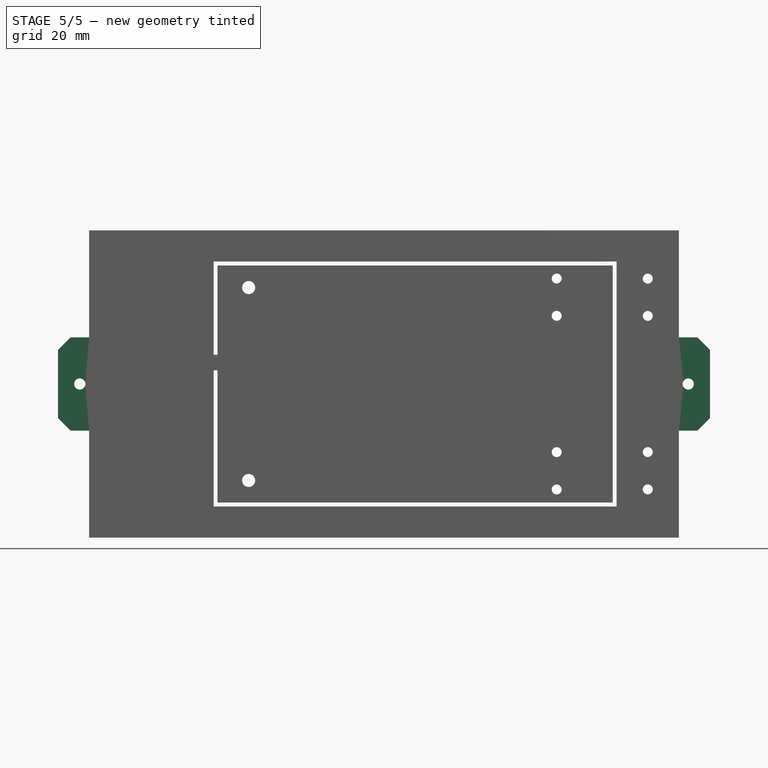
[diagram: stage 5 of 5 — front view after this stage's code; geometry added in this stage tinted green]
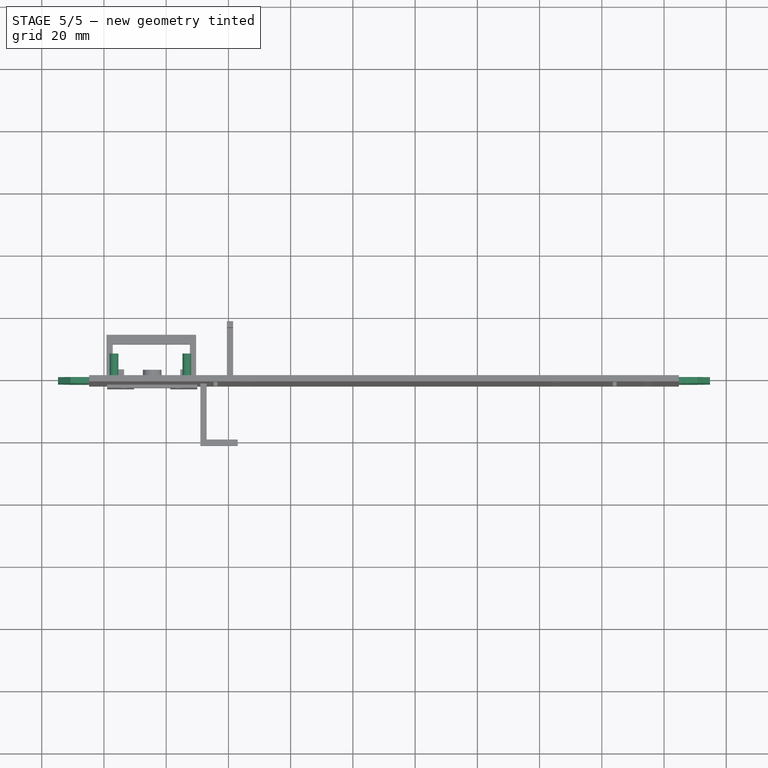
[diagram: stage 5 of 5 — top view after this stage's code; geometry added in this stage tinted green]
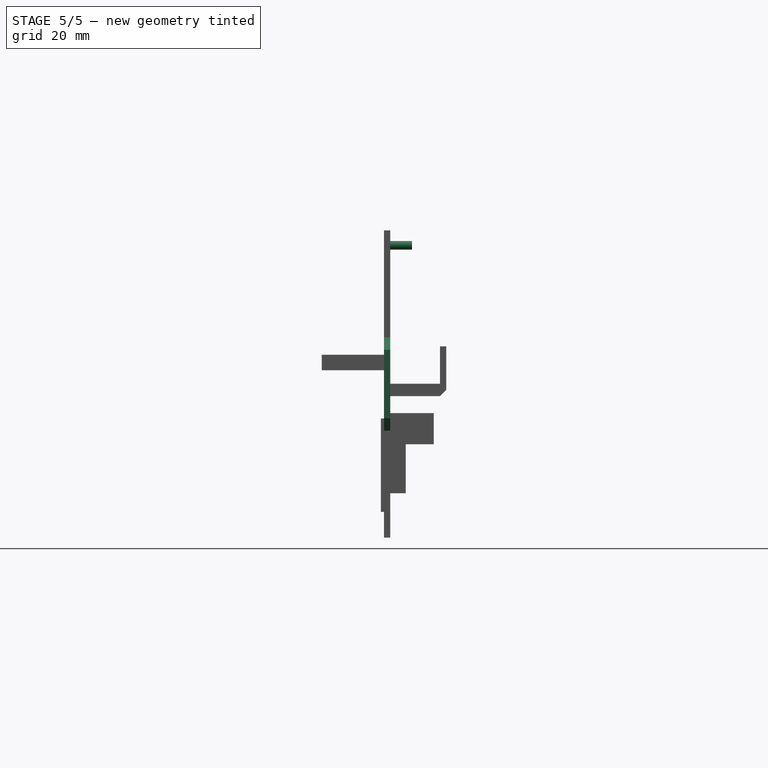
[diagram: stage 5 of 5 — right view after this stage's code; geometry added in this stage tinted green]
FEATURE [Sketcher::SketchObject] Sketch008
  ArcFitTolerance = 1e-06
  AttachmentSupport = -> [Pocket]
  ExternalGeometry = -> [Pocket]
  FullyConstrained = true
  MakeInternals = false
  MapMode = 5
  Placement = pos=(0,-1,0) rot=(-1,0,0;1.5708rad)
  sketch-geometry (4):
    g0: Circle CenterX=-96.77 CenterY=-36.27 CenterZ=0 NormalX=0 NormalY=0 NormalZ=1 AngleXU=0 Radius=1.4
    g1: Circle CenterX=-73.37 CenterY=-36.27 CenterZ=0 NormalX=0 NormalY=0 NormalZ=1 AngleXU=0 Radius=1.4
    g2: Circle CenterX=-96.77 CenterY=-82.67 CenterZ=0 NormalX=0 NormalY=0 NormalZ=1 AngleXU=0 Radius=1.4
    g3: Circle CenterX=-73.37 CenterY=-82.67 CenterZ=0 NormalX=0 NormalY=0 NormalZ=1 AngleXU=0 Radius=1.4
  constraints (12):
    c: Equal(g0,g2)
    c: Equal(g2,g1)
    c: Equal(g1,g3)
    c: Horizontal(g1,g0)
    c: Horizontal(g2,g3)
    c: Vertical(g2,g0)
    c: Vertical(g1,g3)
    c: Diameter(g0) = 2.8
    c: Distance(g0,g1) = 20.6
    c: Distance(g0,g2) = 43.6
    c: Distance(g0,g-3) = 1.2
    c: Distance(g0,g-4) = 1
FEATURE [PartDesign::Pad] Pad003
  BaseFeature = -> Pocket004
  Direction = (0,1,2e-16)
  Length = 8
  Length2 = 10
  Placement = pos=(0,0,0) rot=(1,0,0;1.5708rad)
  Profile = -> Sketch008
  ReferenceAxis = -> Sketch008 [N_Axis]
  Refine = true
  Suppressed = false
  Type = 0
FEATURE [Sketcher::SketchObject] Sketch009
  ArcFitTolerance = 1e-06
  AttachmentSupport = -> [Pad003]
  ExternalGeometry = -> [Pad003]
  FullyConstrained = true
  MakeInternals = false
  MapMode = 5
  Placement = pos=(-104.77,0,0) rot=(0.707107,0,-0.707107;3.14159rad)
  sketch-geometry (5):
    g0: LineSegment StartX=-53.1 StartY=2 StartZ=0 EndX=-53.1 EndY=-5.1e-15 EndZ=0
    g1: LineSegment StartX=-53.1 StartY=-5.1e-15 StartZ=0 EndX=-23.1 EndY=-5.1e-15 EndZ=0
    g2: LineSegment StartX=-23.1 StartY=-5.1e-15 StartZ=0 EndX=-23.1 EndY=2 EndZ=0
    g3: LineSegment StartX=-23.1 StartY=2 StartZ=0 EndX=-53.1 EndY=2 EndZ=0
    g4: GeomPoint [constr] X=-38.1 Y=1 Z=0
  constraints (12):
    c: Coincident(g0,g1)
    c: Coincident(g1,g2)
    c: Coincident(g2,g3)
    c: Coincident(g3,g0)
    c: Vertical(g0)
    c: Vertical(g2)
    c: Horizontal(g1)
    c: Horizontal(g3)
    c: PointOnObject(g1,g-4)
    c: Symmetric(g0,g1,g4)
    c: Symmetric(g-3,g-4,g4)
    c: DistanceX(g3,g3) = 30
FEATURE [PartDesign::Pad] Pad004
  BaseFeature = -> Pad003
  Direction = (-1,0,-2e-16)
  Length = 10
  Length2 = 10
  Placement = pos=(0,0,0) rot=(1,0,0;1.5708rad)
  Profile = -> Sketch009
  ReferenceAxis = -> Sketch009 [N_Axis]
  Refine = true
  Suppressed = false
  Type = 0
FEATURE [Sketcher::SketchObject] Sketch011
  ArcFitTolerance = 1e-06
  FullyConstrained = true
  MakeInternals = false
  MapMode = 5
  Placement = pos=(84.77,0,0) rot=(0.707107,0,0.707107;3.14159rad)
  sketch-geometry (5):
    g0: LineSegment StartX=23.1 StartY=2 StartZ=0 EndX=23.1 EndY=-1.15e-14 EndZ=0
    g1: LineSegment StartX=23.1 StartY=-1.15e-14 StartZ=0 EndX=53.1 EndY=-1.15e-14 EndZ=0
    g2: LineSegment StartX=53.1 StartY=-1.15e-14 StartZ=0 EndX=53.1 EndY=2 EndZ=0
    g3: LineSegment StartX=53.1 StartY=2 StartZ=0 EndX=23.1 EndY=2 EndZ=0
    g4: GeomPoint [constr] X=38.1 Y=1 Z=0
  constraints (12):
    c: Coincident(g0,g1)
    c: Coincident(g1,g2)
    c: Coincident(g2,g3)
    c: Coincident(g3,g0)
    c: Vertical(g0)
    c: Vertical(g2)
    c: Horizontal(g1)
    c: Horizontal(g3)
    c: PointOnObject(g0,g-3)
    c: DistanceX(g3,g3) = 30
    c: Symmetric(g0,g1,g4)
    c: Symmetric(g-3,g-4,g4)
FEATURE [PartDesign::Pad] Pad005
  BaseFeature = -> Pad004
  Direction = (1,-1e-16,-2e-16)
  Length = 10
  Length2 = 10
  Placement = pos=(0,0,0) rot=(1,0,0;1.5708rad)
  Profile = -> Sketch011
  ReferenceAxis = -> Sketch011 [N_Axis]
  Refine = true
  Suppressed = false
  Type = 0
FEATURE [PartDesign::Chamfer] Chamfer
  Angle = 45
  Base = -> Pad005 [Edge23,Edge13,Edge31,Edge34]
  BaseFeature = -> Pad005
  ChamferType = 0
  FlipDirection = false
  Placement = pos=(0,0,0) rot=(1,0,0;1.5708rad)
  Refine = true
  Size = 4
  Size2 = 1
  SupportTransform = false
  Suppressed = false
  UseAllEdges = false
FEATURE [Sketcher::SketchObject] Sketch012
  ArcFitTolerance = 1e-06
  AttachmentSupport = -> [Chamfer]
  ExternalGeometry = -> [Chamfer]
  FullyConstrained = true
  MakeInternals = false
  MapMode = 5
  Placement = pos=(0,1.7e-15,0) rot=(-1,0,0;1.5708rad)
  sketch-geometry (2):
    g0: Circle CenterX=87.77 CenterY=-38.1 CenterZ=0 NormalX=0 NormalY=0 NormalZ=1 AngleXU=0 Radius=1.8
    g1: Circle CenterX=-107.77 CenterY=-38.1 CenterZ=0 NormalX=0 NormalY=0 NormalZ=1 AngleXU=0 Radius=1.8
  constraints (4):
    c: Symmetric(g-3,g-4,g0)
    c: Symmetric(g-6,g-5,g1)
    c: Diameter(g1) = 3.6
    c: Equal(g1,g0)
FEATURE [PartDesign::Pocket] Pocket005
  BaseFeature = -> Chamfer
  Direction = (0,-1,-2e-16)
  Length = 2
  Length2 = 5
  Placement = pos=(0,0,0) rot=(1,0,0;1.5708rad)
  Profile = -> Sketch012
  ReferenceAxis = -> Sketch012 [N_Axis]
  Refine = true
  Suppressed = false
  Type = 0
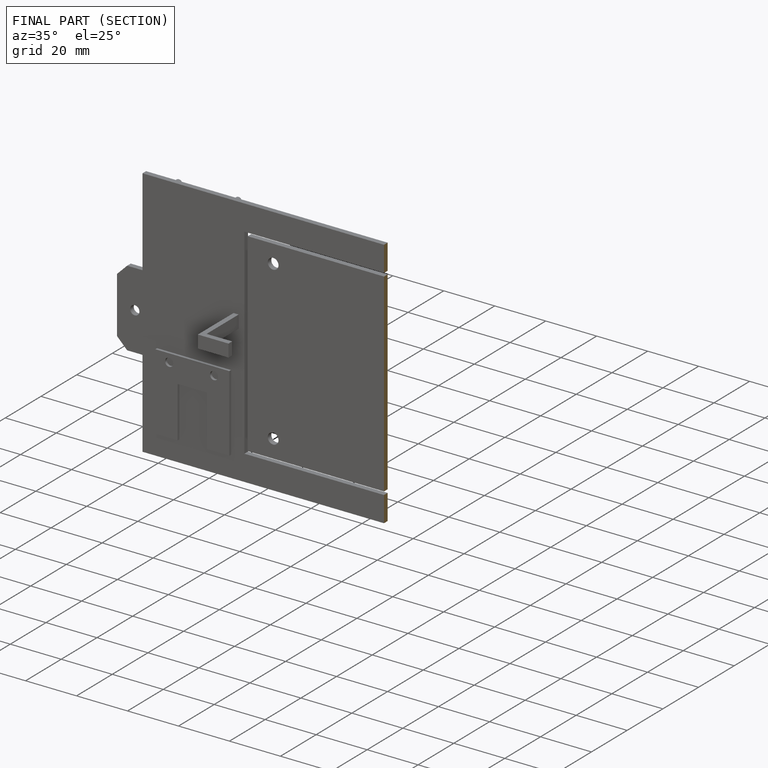
[diagram: finished part — half-section view (interior)]
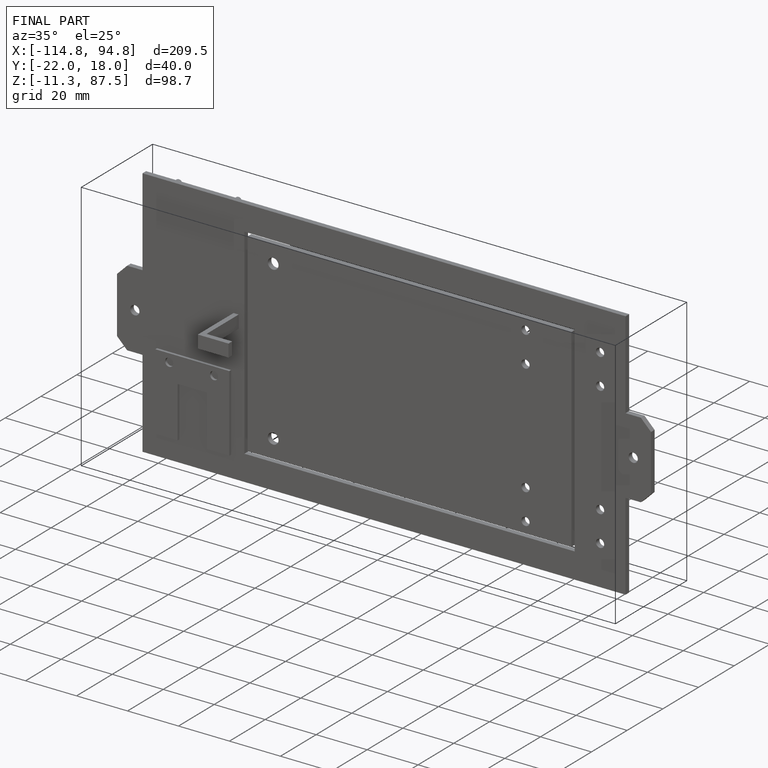
[diagram: finished part — iso view with bounding-box wireframe]
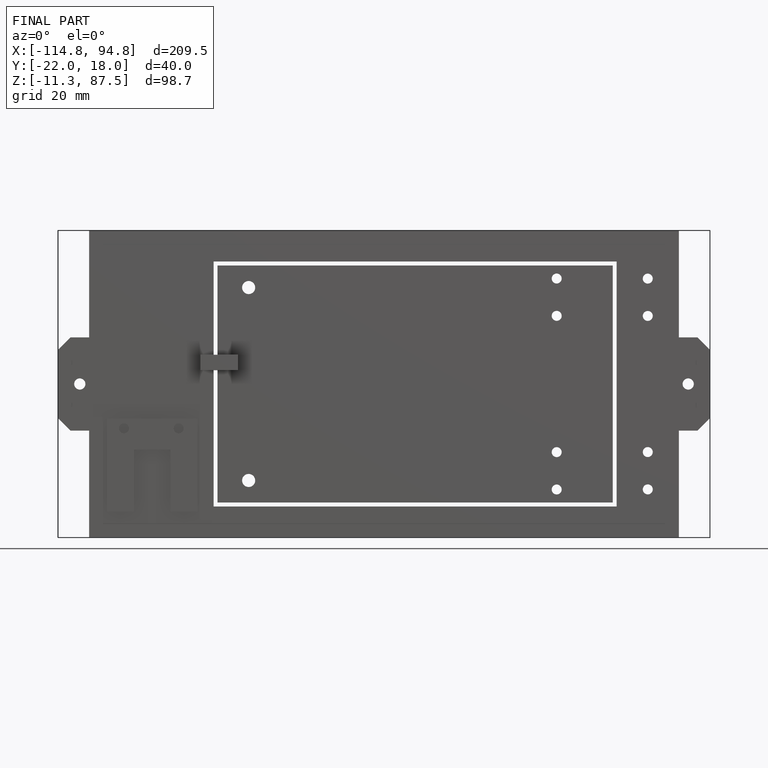
[diagram: finished part — front view with bounding-box wireframe]
